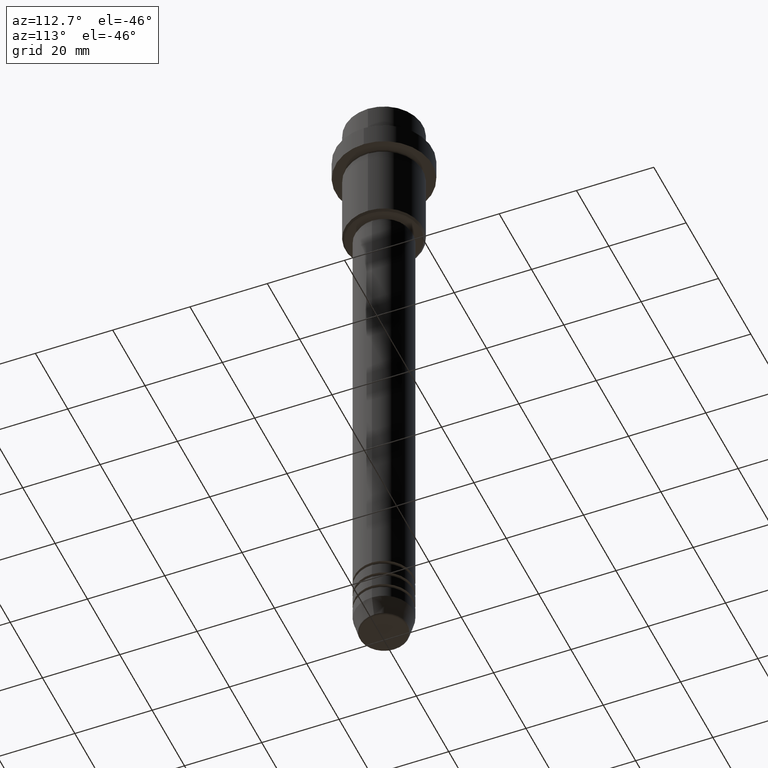
[diagram: clean part render]
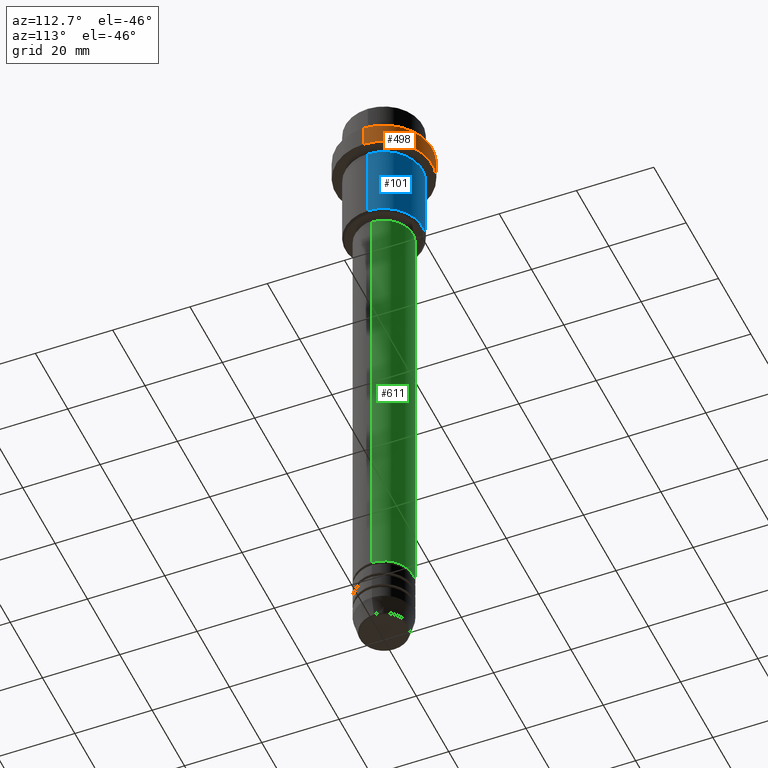
[diagram: same view with three faces highlighted in distinct colors, each labeled with its STEP entity id]
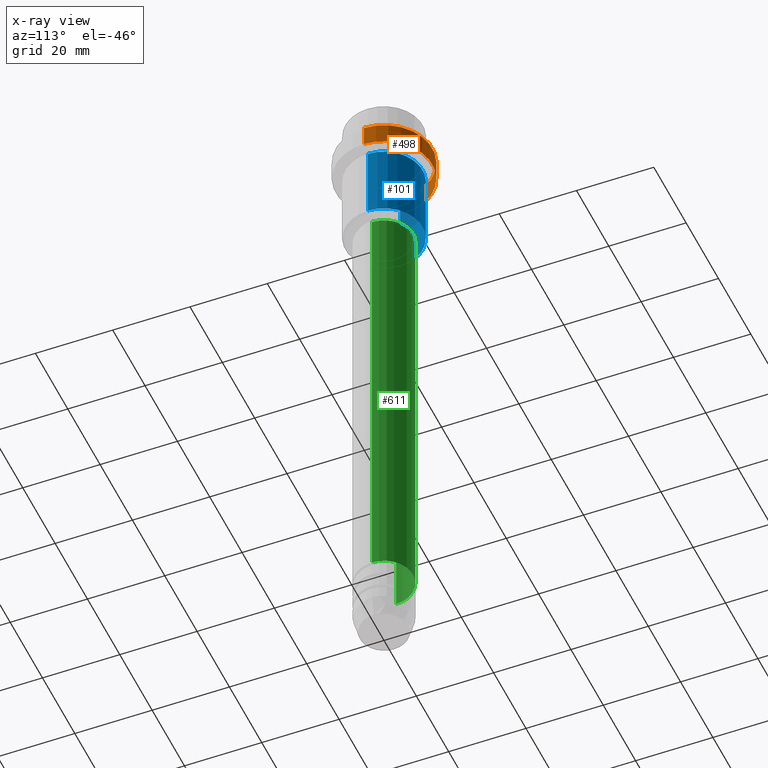
[diagram: x-ray of the same camera — body ghosted, the three highlighted faces saturated]
A machine part, auxiliary view with three faces highlighted in distinct colors.
The next image is the same camera in x-ray (body ghosted, the three faces saturated) — at least one of them is partly hidden behind the body in this view.
Their STEP definitions:

[orange] entity #498 — the highlighted cylindrical surface (partial cylindrical patch) has radius 12.5 mm, axis along (-0, -0, 1).
#16 = CARTESIAN_POINT ( 'NONE',  ( 12.50000000000000000, 0.000000000000000000, -15.00000000000000178 ) ) ;
#36 = DIRECTION ( 'NONE',  ( -0.000000000000000000, -0.000000000000000000, 1.000000000000000000 ) ) ;
#107 = VECTOR ( 'NONE', #361, 1000.000000000000000 ) ;
#119 = VERTEX_POINT ( 'NONE', #16 ) ;
#130 = FACE_OUTER_BOUND ( 'NONE', #281, .T. ) ;
#136 = AXIS2_PLACEMENT_3D ( 'NONE', #521, #438, #745 ) ;
#140 = LINE ( 'NONE', #705, #107 ) ;
#238 = ORIENTED_EDGE ( 'NONE', *, *, #1081, .T. ) ;
#264 = DIRECTION ( 'NONE',  ( 1.000000000000000000, 0.000000000000000000, 0.000000000000000000 ) ) ;
#281 = EDGE_LOOP ( 'NONE', ( #1178, #682, #238, #365 ) ) ;
#347 = CARTESIAN_POINT ( 'NONE',  ( -12.50000000000000000, 1.530808498934191521E-15, -15.00000000000000178 ) ) ;
#361 = DIRECTION ( 'NONE',  ( -0.000000000000000000, -0.000000000000000000, 1.000000000000000000 ) ) ;
#365 = ORIENTED_EDGE ( 'NONE', *, *, #956, .F. ) ;
#422 = CARTESIAN_POINT ( 'NONE',  ( -12.50000000000000000, 1.530808498934191521E-15, -9.500000000000007105 ) ) ;
#438 = DIRECTION ( 'NONE',  ( -0.000000000000000000, -0.000000000000000000, 1.000000000000000000 ) ) ;
#466 = CYLINDRICAL_SURFACE ( 'NONE', #501, 12.50000000000000000 ) ;
#471 = DIRECTION ( 'NONE',  ( 1.000000000000000000, 0.000000000000000000, 0.000000000000000000 ) ) ;
#498 = ADVANCED_FACE ( 'NONE', ( #130 ), #466, .T. ) ;
#501 = AXIS2_PLACEMENT_3D ( 'NONE', #903, #1343, #264 ) ;
#521 = CARTESIAN_POINT ( 'NONE',  ( 0.000000000000000000, 0.000000000000000000, -15.00000000000000178 ) ) ;
#549 = VERTEX_POINT ( 'NONE', #347 ) ;
#580 = LINE ( 'NONE', #1220, #1123 ) ;
#682 = ORIENTED_EDGE ( 'NONE', *, *, #1021, .T. ) ;
#705 = CARTESIAN_POINT ( 'NONE',  ( 12.50000000000000000, 0.000000000000000000, 0.000000000000000000 ) ) ;
#738 = CIRCLE ( 'NONE', #136, 12.50000000000000000 ) ;
#745 = DIRECTION ( 'NONE',  ( 1.000000000000000000, 0.000000000000000000, 0.000000000000000000 ) ) ;
#798 = DIRECTION ( 'NONE',  ( 0.000000000000000000, 0.000000000000000000, -1.000000000000000000 ) ) ;
#875 = CARTESIAN_POINT ( 'NONE',  ( 12.50000000000000000, 0.000000000000000000, -9.500000000000007105 ) ) ;
#893 = VERTEX_POINT ( 'NONE', #875 ) ;
#903 = CARTESIAN_POINT ( 'NONE',  ( 0.000000000000000000, 0.000000000000000000, 0.000000000000000000 ) ) ;
#941 = AXIS2_PLACEMENT_3D ( 'NONE', #1126, #798, #471 ) ;
#947 = VERTEX_POINT ( 'NONE', #422 ) ;
#956 = EDGE_CURVE ( 'NONE', #119, #893, #140, .T. ) ;
#1021 = EDGE_CURVE ( 'NONE', #549, #947, #580, .T. ) ;
#1081 = EDGE_CURVE ( 'NONE', #947, #893, #1370, .T. ) ;
#1123 = VECTOR ( 'NONE', #36, 1000.000000000000000 ) ;
#1126 = CARTESIAN_POINT ( 'NONE',  ( 0.000000000000000000, 0.000000000000000000, -9.500000000000007105 ) ) ;
#1178 = ORIENTED_EDGE ( 'NONE', *, *, #1248, .T. ) ;
#1220 = CARTESIAN_POINT ( 'NONE',  ( -12.50000000000000000, 1.530808498934191521E-15, 0.000000000000000000 ) ) ;
#1248 = EDGE_CURVE ( 'NONE', #119, #549, #738, .T. ) ;
#1343 = DIRECTION ( 'NONE',  ( -0.000000000000000000, -0.000000000000000000, 1.000000000000000000 ) ) ;
#1370 = CIRCLE ( 'NONE', #941, 12.50000000000000000 ) ;

[blue] entity #101 — the highlighted cylindrical surface (partial cylindrical patch) has radius 10 mm, axis along (-0, -0, 1).
#3 = VERTEX_POINT ( 'NONE', #1199 ) ;
#13 = CIRCLE ( 'NONE', #1258, 10.00000000000000000 ) ;
#21 = ORIENTED_EDGE ( 'NONE', *, *, #485, .T. ) ;
#25 = DIRECTION ( 'NONE',  ( 1.000000000000000000, 0.000000000000000000, 0.000000000000000000 ) ) ;
#38 = DIRECTION ( 'NONE',  ( -0.000000000000000000, -0.000000000000000000, 1.000000000000000000 ) ) ;
#56 = CARTESIAN_POINT ( 'NONE',  ( 10.00000000000000000, 0.000000000000000000, 0.000000000000000000 ) ) ;
#101 = ADVANCED_FACE ( 'NONE', ( #265 ), #607, .T. ) ;
#104 = AXIS2_PLACEMENT_3D ( 'NONE', #815, #38, #707 ) ;
#109 = VERTEX_POINT ( 'NONE', #251 ) ;
#153 = LINE ( 'NONE', #695, #374 ) ;
#227 = DIRECTION ( 'NONE',  ( -1.000000000000000000, 0.000000000000000000, 0.000000000000000000 ) ) ;
#237 = EDGE_LOOP ( 'NONE', ( #677, #21, #1150, #362 ) ) ;
#251 = CARTESIAN_POINT ( 'NONE',  ( -10.00000000000000000, 1.224646799147353256E-15, -35.49999999999997158 ) ) ;
#265 = FACE_OUTER_BOUND ( 'NONE', #237, .T. ) ;
#327 = CARTESIAN_POINT ( 'NONE',  ( 0.000000000000000000, 0.000000000000000000, -35.49999999999997158 ) ) ;
#362 = ORIENTED_EDGE ( 'NONE', *, *, #641, .F. ) ;
#374 = VECTOR ( 'NONE', #1226, 1000.000000000000000 ) ;
#410 = LINE ( 'NONE', #56, #428 ) ;
#428 = VECTOR ( 'NONE', #1271, 1000.000000000000000 ) ;
#465 = EDGE_CURVE ( 'NONE', #576, #109, #13, .T. ) ;
#468 = VERTEX_POINT ( 'NONE', #974 ) ;
#485 = EDGE_CURVE ( 'NONE', #109, #3, #153, .T. ) ;
#519 = EDGE_CURVE ( 'NONE', #468, #3, #985, .T. ) ;
#576 = VERTEX_POINT ( 'NONE', #1116 ) ;
#607 = CYLINDRICAL_SURFACE ( 'NONE', #1057, 10.00000000000000000 ) ;
#641 = EDGE_CURVE ( 'NONE', #576, #468, #410, .T. ) ;
#677 = ORIENTED_EDGE ( 'NONE', *, *, #465, .T. ) ;
#695 = CARTESIAN_POINT ( 'NONE',  ( -10.00000000000000000, 1.224646799147353256E-15, 0.000000000000000000 ) ) ;
#707 = DIRECTION ( 'NONE',  ( 1.000000000000000000, 0.000000000000000000, 0.000000000000000000 ) ) ;
#708 = DIRECTION ( 'NONE',  ( -0.000000000000000000, -0.000000000000000000, 1.000000000000000000 ) ) ;
#815 = CARTESIAN_POINT ( 'NONE',  ( 0.000000000000000000, 0.000000000000000000, -16.00000000000000000 ) ) ;
#974 = CARTESIAN_POINT ( 'NONE',  ( 10.00000000000000000, 0.000000000000000000, -16.00000000000000000 ) ) ;
#985 = CIRCLE ( 'NONE', #104, 10.00000000000000000 ) ;
#1057 = AXIS2_PLACEMENT_3D ( 'NONE', #1235, #708, #25 ) ;
#1116 = CARTESIAN_POINT ( 'NONE',  ( 10.00000000000000000, 0.000000000000000000, -35.49999999999997158 ) ) ;
#1150 = ORIENTED_EDGE ( 'NONE', *, *, #519, .F. ) ;
#1199 = CARTESIAN_POINT ( 'NONE',  ( -10.00000000000000000, 1.224646799147353256E-15, -16.00000000000000000 ) ) ;
#1210 = DIRECTION ( 'NONE',  ( -0.000000000000000000, -0.000000000000000000, 1.000000000000000000 ) ) ;
#1226 = DIRECTION ( 'NONE',  ( -0.000000000000000000, -0.000000000000000000, 1.000000000000000000 ) ) ;
#1235 = CARTESIAN_POINT ( 'NONE',  ( 0.000000000000000000, 0.000000000000000000, 0.000000000000000000 ) ) ;
#1258 = AXIS2_PLACEMENT_3D ( 'NONE', #327, #1210, #227 ) ;
#1271 = DIRECTION ( 'NONE',  ( -0.000000000000000000, -0.000000000000000000, 1.000000000000000000 ) ) ;

[green] entity #611 — the highlighted cylindrical surface (edge-blend (fillet) strip) has radius 7.5 mm, axis along (-0, -0, 1).
#30 = CARTESIAN_POINT ( 'NONE',  ( -7.500000000000000000, 9.184850993605147944E-16, 0.000000000000000000 ) ) ;
#69 = CARTESIAN_POINT ( 'NONE',  ( 7.500000000000000000, 0.000000000000000000, -153.9999999999998863 ) ) ;
#75 = VERTEX_POINT ( 'NONE', #800 ) ;
#137 = ORIENTED_EDGE ( 'NONE', *, *, #1078, .T. ) ;
#146 = CARTESIAN_POINT ( 'NONE',  ( 0.000000000000000000, 0.000000000000000000, -153.9999999999998863 ) ) ;
#196 = DIRECTION ( 'NONE',  ( -0.000000000000000000, -0.000000000000000000, 1.000000000000000000 ) ) ;
#246 = DIRECTION ( 'NONE',  ( -0.000000000000000000, -0.000000000000000000, 1.000000000000000000 ) ) ;
#305 = ORIENTED_EDGE ( 'NONE', *, *, #855, .F. ) ;
#346 = DIRECTION ( 'NONE',  ( -0.000000000000000000, -0.000000000000000000, 1.000000000000000000 ) ) ;
#473 = CARTESIAN_POINT ( 'NONE',  ( 0.000000000000000000, 0.000000000000000000, 0.000000000000000000 ) ) ;
#556 = CIRCLE ( 'NONE', #1240, 7.500000000000000000 ) ;
#566 = DIRECTION ( 'NONE',  ( 1.000000000000000000, 0.000000000000000000, 0.000000000000000000 ) ) ;
#596 = DIRECTION ( 'NONE',  ( -0.000000000000000000, -0.000000000000000000, 1.000000000000000000 ) ) ;
#599 = ORIENTED_EDGE ( 'NONE', *, *, #899, .F. ) ;
#611 = ADVANCED_FACE ( 'NONE', ( #1233 ), #701, .T. ) ;
#701 = CYLINDRICAL_SURFACE ( 'NONE', #1346, 7.500000000000000000 ) ;
#713 = AXIS2_PLACEMENT_3D ( 'NONE', #881, #1406, #566 ) ;
#776 = CARTESIAN_POINT ( 'NONE',  ( 7.500000000000000000, 0.000000000000000000, 0.000000000000000000 ) ) ;
#800 = CARTESIAN_POINT ( 'NONE',  ( -7.500000000000000000, 9.184850993605147944E-16, -153.9999999999998863 ) ) ;
#814 = DIRECTION ( 'NONE',  ( 1.000000000000000000, 0.000000000000000000, 0.000000000000000000 ) ) ;
#855 = EDGE_CURVE ( 'NONE', #1268, #1120, #1327, .T. ) ;
#881 = CARTESIAN_POINT ( 'NONE',  ( 0.000000000000000000, 0.000000000000000000, -37.00000000000000000 ) ) ;
#899 = EDGE_CURVE ( 'NONE', #1217, #1268, #973, .T. ) ;
#952 = EDGE_CURVE ( 'NONE', #1217, #75, #556, .T. ) ;
#972 = CARTESIAN_POINT ( 'NONE',  ( 7.500000000000000000, 0.000000000000000000, -37.00000000000000000 ) ) ;
#973 = LINE ( 'NONE', #776, #1348 ) ;
#1028 = DIRECTION ( 'NONE',  ( 1.000000000000000000, 0.000000000000000000, 0.000000000000000000 ) ) ;
#1034 = VECTOR ( 'NONE', #346, 1000.000000000000000 ) ;
#1051 = CARTESIAN_POINT ( 'NONE',  ( -7.500000000000000000, 9.184850993605147944E-16, -37.00000000000000000 ) ) ;
#1078 = EDGE_CURVE ( 'NONE', #75, #1120, #1338, .T. ) ;
#1082 = ORIENTED_EDGE ( 'NONE', *, *, #952, .T. ) ;
#1120 = VERTEX_POINT ( 'NONE', #1051 ) ;
#1156 = EDGE_LOOP ( 'NONE', ( #1082, #137, #305, #599 ) ) ;
#1217 = VERTEX_POINT ( 'NONE', #69 ) ;
#1233 = FACE_OUTER_BOUND ( 'NONE', #1156, .T. ) ;
#1240 = AXIS2_PLACEMENT_3D ( 'NONE', #146, #246, #814 ) ;
#1268 = VERTEX_POINT ( 'NONE', #972 ) ;
#1327 = CIRCLE ( 'NONE', #713, 7.500000000000000000 ) ;
#1338 = LINE ( 'NONE', #30, #1034 ) ;
#1346 = AXIS2_PLACEMENT_3D ( 'NONE', #473, #596, #1028 ) ;
#1348 = VECTOR ( 'NONE', #196, 1000.000000000000000 ) ;
#1406 = DIRECTION ( 'NONE',  ( -0.000000000000000000, -0.000000000000000000, 1.000000000000000000 ) ) ;